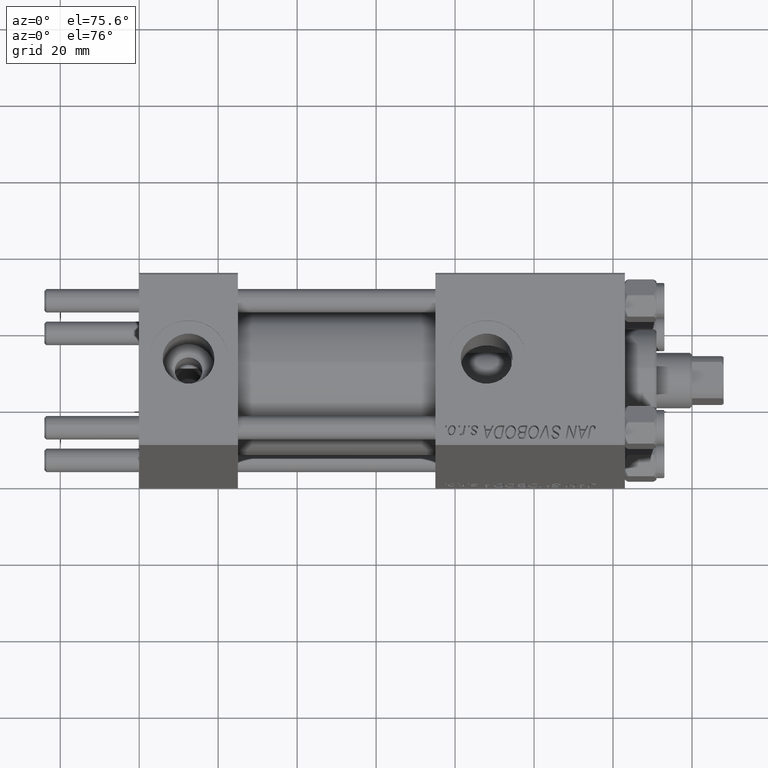
[diagram: clean part render]
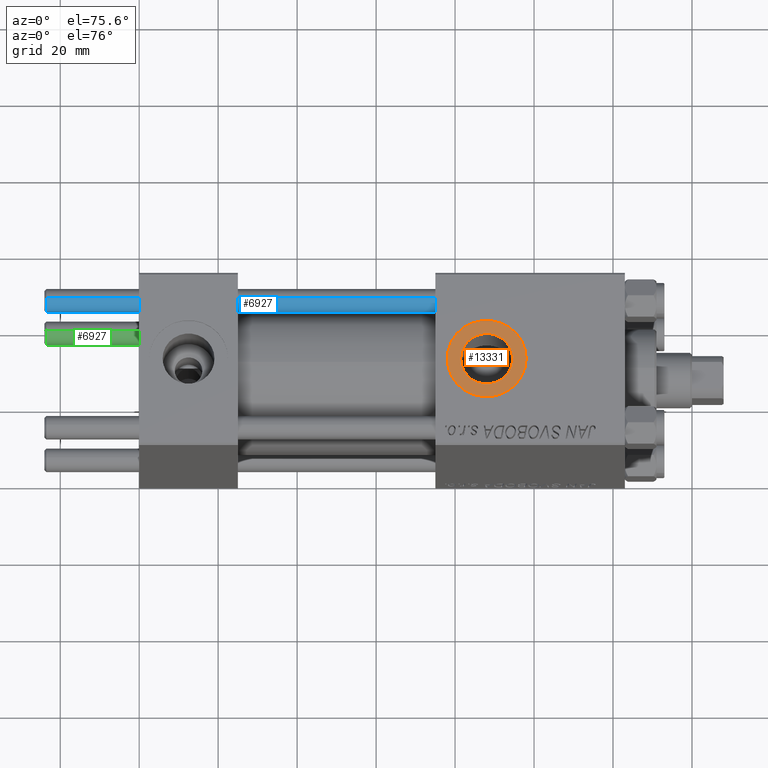
[diagram: same view with three faces highlighted in distinct colors, each labeled with its STEP entity id]
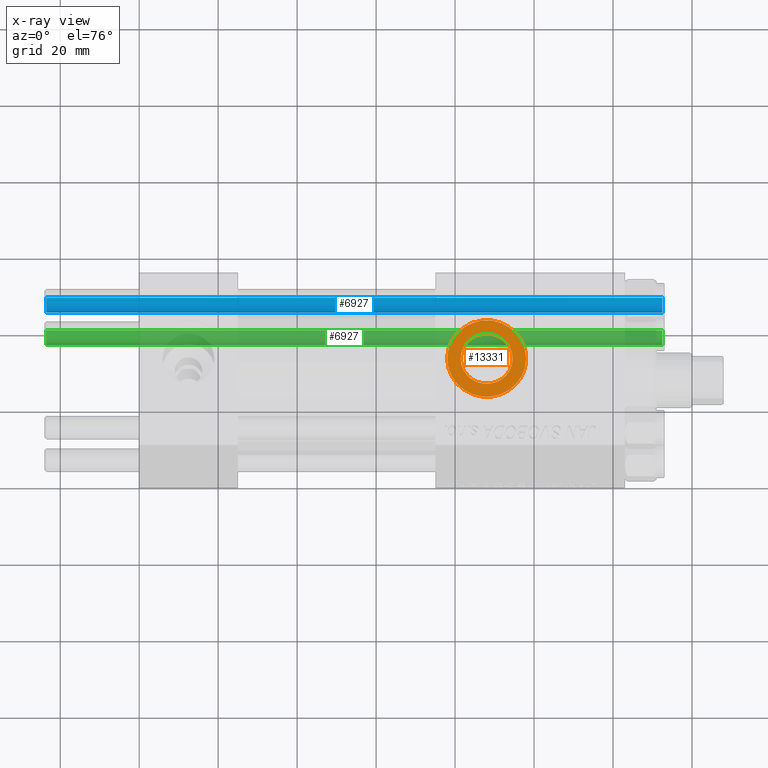
[diagram: x-ray of the same camera — body ghosted, the three highlighted faces saturated]
A machine part, auxiliary view with three faces highlighted in distinct colors.
The next image is the same camera in x-ray (body ghosted, the three faces saturated) — at least one of them is partly hidden behind the body in this view.
Their STEP definitions:

[orange] entity #13331 — the highlighted planar face has unit normal (0, 0, 1).
#865 = AXIS2_PLACEMENT_3D ( 'NONE', #28061, #15459, #11020 ) ;
#1027 = DIRECTION ( 'NONE',  ( 1.000000000000000000, 0.000000000000000000, 0.000000000000000000 ) ) ;
#2041 = CARTESIAN_POINT ( 'NONE',  ( 88.00000000000001421, -5.204170427930420494E-15, 22.29999999999999716 ) ) ;
#2174 = CIRCLE ( 'NONE', #23951, 6.580000000000002736 ) ;
#2425 = CIRCLE ( 'NONE', #13303, 10.00000000000000888 ) ;
#4503 = DIRECTION ( 'NONE',  ( -0.000000000000000000, -0.000000000000000000, -1.000000000000000000 ) ) ;
#4863 = EDGE_CURVE ( 'NONE', #30559, #48189, #2425, .T. ) ;
#8826 = EDGE_CURVE ( 'NONE', #34652, #12831, #2174, .T. ) ;
#9897 = DIRECTION ( 'NONE',  ( -0.000000000000000000, -0.000000000000000000, -1.000000000000000000 ) ) ;
#10062 = CIRCLE ( 'NONE', #45242, 6.580000000000002736 ) ;
#10315 = CARTESIAN_POINT ( 'NONE',  ( 78.00000000000000000, -3.979523628783065857E-15, 22.29999999999999716 ) ) ;
#11020 = DIRECTION ( 'NONE',  ( 1.000000000000000000, 0.000000000000000000, 0.000000000000000000 ) ) ;
#12133 = EDGE_LOOP ( 'NONE', ( #35740, #33630 ) ) ;
#12831 = VERTEX_POINT ( 'NONE', #43439 ) ;
#13078 = DIRECTION ( 'NONE',  ( 0.000000000000000000, 0.000000000000000000, 1.000000000000000000 ) ) ;
#13088 = AXIS2_PLACEMENT_3D ( 'NONE', #25133, #33771, #25907 ) ;
#13303 = AXIS2_PLACEMENT_3D ( 'NONE', #33287, #13078, #1027 ) ;
#13331 = ADVANCED_FACE ( 'NONE', ( #29577, #17770 ), #50046, .T. ) ;
#14932 = ORIENTED_EDGE ( 'NONE', *, *, #48766, .T. ) ;
#15459 = DIRECTION ( 'NONE',  ( 0.000000000000000000, 0.000000000000000000, 1.000000000000000000 ) ) ;
#16681 = CARTESIAN_POINT ( 'NONE',  ( 98.00000000000001421, -5.204170427930420494E-15, 22.29999999999999716 ) ) ;
#17770 = FACE_OUTER_BOUND ( 'NONE', #12133, .T. ) ;
#20591 = ORIENTED_EDGE ( 'NONE', *, *, #8826, .T. ) ;
#21273 = DIRECTION ( 'NONE',  ( 1.000000000000000000, 0.000000000000000000, 0.000000000000000000 ) ) ;
#23951 = AXIS2_PLACEMENT_3D ( 'NONE', #2041, #9897, #29587 ) ;
#25133 = CARTESIAN_POINT ( 'NONE',  ( 88.00000000000001421, -5.204170427930420494E-15, 22.29999999999999716 ) ) ;
#25907 = DIRECTION ( 'NONE',  ( 1.000000000000000000, 0.000000000000000000, -0.000000000000000000 ) ) ;
#28061 = CARTESIAN_POINT ( 'NONE',  ( 88.00000000000001421, -5.204170427930420494E-15, 22.29999999999999716 ) ) ;
#29577 = FACE_BOUND ( 'NONE', #38838, .T. ) ;
#29587 = DIRECTION ( 'NONE',  ( 1.000000000000000000, 0.000000000000000000, 0.000000000000000000 ) ) ;
#29716 = CARTESIAN_POINT ( 'NONE',  ( 94.58000000000001251, -4.398352834091461452E-15, 22.29999999999999716 ) ) ;
#30559 = VERTEX_POINT ( 'NONE', #10315 ) ;
#33287 = CARTESIAN_POINT ( 'NONE',  ( 88.00000000000001421, -5.204170427930420494E-15, 22.29999999999999716 ) ) ;
#33630 = ORIENTED_EDGE ( 'NONE', *, *, #4863, .T. ) ;
#33771 = DIRECTION ( 'NONE',  ( 0.000000000000000000, 0.000000000000000000, 1.000000000000000000 ) ) ;
#34652 = VERTEX_POINT ( 'NONE', #29716 ) ;
#35740 = ORIENTED_EDGE ( 'NONE', *, *, #48932, .T. ) ;
#36775 = CARTESIAN_POINT ( 'NONE',  ( 88.00000000000001421, -5.204170427930420494E-15, 22.29999999999999716 ) ) ;
#38838 = EDGE_LOOP ( 'NONE', ( #14932, #20591 ) ) ;
#42734 = CIRCLE ( 'NONE', #865, 10.00000000000000888 ) ;
#43439 = CARTESIAN_POINT ( 'NONE',  ( 81.42000000000000171, -5.204170427930420494E-15, 22.29999999999999716 ) ) ;
#45242 = AXIS2_PLACEMENT_3D ( 'NONE', #36775, #4503, #21273 ) ;
#48189 = VERTEX_POINT ( 'NONE', #16681 ) ;
#48766 = EDGE_CURVE ( 'NONE', #12831, #34652, #10062, .T. ) ;
#48932 = EDGE_CURVE ( 'NONE', #48189, #30559, #42734, .T. ) ;
#50046 = PLANE ( 'NONE',  #13088 ) ;

[blue] entity #6927 — the highlighted cylindrical surface (edge-blend (fillet) strip) has radius 3 mm, axis along (-1, -0, -0).
#1481 = ORIENTED_EDGE ( 'NONE', *, *, #18535, .F. ) ;
#2549 = EDGE_CURVE ( 'NONE', #15577, #41036, #9754, .T. ) ;
#6927 = ADVANCED_FACE ( 'NONE', ( #8067 ), #28535, .T. ) ;
#7304 = AXIS2_PLACEMENT_3D ( 'NONE', #10666, #18790, #14860 ) ;
#7784 = CARTESIAN_POINT ( 'NONE',  ( 3.000000000000000444, 3.673940397442060361E-16, 0.4999999999999726885 ) ) ;
#8067 = FACE_OUTER_BOUND ( 'NONE', #11093, .T. ) ;
#8466 = LINE ( 'NONE', #20792, #22467 ) ;
#9754 = CIRCLE ( 'NONE', #13134, 3.000000000000000444 ) ;
#10666 = CARTESIAN_POINT ( 'NONE',  ( 0.000000000000000000, 0.000000000000000000, 0.4999999999999726885 ) ) ;
#11093 = EDGE_LOOP ( 'NONE', ( #1481, #21923, #18206, #13002 ) ) ;
#13002 = ORIENTED_EDGE ( 'NONE', *, *, #16237, .T. ) ;
#13134 = AXIS2_PLACEMENT_3D ( 'NONE', #17081, #44912, #49382 ) ;
#14860 = DIRECTION ( 'NONE',  ( 1.000000000000000000, 0.000000000000000000, 0.000000000000000000 ) ) ;
#15577 = VERTEX_POINT ( 'NONE', #16076 ) ;
#16076 = CARTESIAN_POINT ( 'NONE',  ( 3.000000000000000444, 3.673940397442060361E-16, 156.5000000000000284 ) ) ;
#16237 = EDGE_CURVE ( 'NONE', #27938, #44272, #24092, .T. ) ;
#16454 = CARTESIAN_POINT ( 'NONE',  ( 0.000000000000000000, 0.000000000000000000, 157.0000000000000000 ) ) ;
#17081 = CARTESIAN_POINT ( 'NONE',  ( 0.000000000000000000, 0.000000000000000000, 156.5000000000000284 ) ) ;
#17110 = LINE ( 'NONE', #17382, #21092 ) ;
#17382 = CARTESIAN_POINT ( 'NONE',  ( -3.000000000000000444, 0.000000000000000000, 157.0000000000000000 ) ) ;
#18206 = ORIENTED_EDGE ( 'NONE', *, *, #31693, .T. ) ;
#18535 = EDGE_CURVE ( 'NONE', #15577, #44272, #8466, .T. ) ;
#18790 = DIRECTION ( 'NONE',  ( -0.000000000000000000, -0.000000000000000000, 1.000000000000000000 ) ) ;
#20792 = CARTESIAN_POINT ( 'NONE',  ( 3.000000000000000444, 3.673940397442060361E-16, 157.0000000000000000 ) ) ;
#21058 = DIRECTION ( 'NONE',  ( -0.000000000000000000, -0.000000000000000000, -1.000000000000000000 ) ) ;
#21092 = VECTOR ( 'NONE', #21058, 1000.000000000000000 ) ;
#21168 = DIRECTION ( 'NONE',  ( -0.000000000000000000, -0.000000000000000000, -1.000000000000000000 ) ) ;
#21923 = ORIENTED_EDGE ( 'NONE', *, *, #2549, .T. ) ;
#22467 = VECTOR ( 'NONE', #32610, 1000.000000000000000 ) ;
#24092 = CIRCLE ( 'NONE', #7304, 3.000000000000000444 ) ;
#27938 = VERTEX_POINT ( 'NONE', #33380 ) ;
#28535 = CYLINDRICAL_SURFACE ( 'NONE', #31399, 3.000000000000000444 ) ;
#28787 = DIRECTION ( 'NONE',  ( -1.000000000000000000, 0.000000000000000000, 0.000000000000000000 ) ) ;
#31024 = CARTESIAN_POINT ( 'NONE',  ( -3.000000000000000444, 0.000000000000000000, 156.5000000000000284 ) ) ;
#31399 = AXIS2_PLACEMENT_3D ( 'NONE', #16454, #21168, #28787 ) ;
#31693 = EDGE_CURVE ( 'NONE', #41036, #27938, #17110, .T. ) ;
#32610 = DIRECTION ( 'NONE',  ( -0.000000000000000000, -0.000000000000000000, -1.000000000000000000 ) ) ;
#33380 = CARTESIAN_POINT ( 'NONE',  ( -3.000000000000000444, 0.000000000000000000, 0.4999999999999726885 ) ) ;
#41036 = VERTEX_POINT ( 'NONE', #31024 ) ;
#44272 = VERTEX_POINT ( 'NONE', #7784 ) ;
#44912 = DIRECTION ( 'NONE',  ( 0.000000000000000000, 0.000000000000000000, -1.000000000000000000 ) ) ;
#49382 = DIRECTION ( 'NONE',  ( 1.000000000000000000, 0.000000000000000000, 0.000000000000000000 ) ) ;

[green] entity #6927 — the highlighted cylindrical surface (edge-blend (fillet) strip) has radius 3 mm, axis along (1, 0, -0).
#1481 = ORIENTED_EDGE ( 'NONE', *, *, #18535, .F. ) ;
#2549 = EDGE_CURVE ( 'NONE', #15577, #41036, #9754, .T. ) ;
#6927 = ADVANCED_FACE ( 'NONE', ( #8067 ), #28535, .T. ) ;
#7304 = AXIS2_PLACEMENT_3D ( 'NONE', #10666, #18790, #14860 ) ;
#7784 = CARTESIAN_POINT ( 'NONE',  ( 3.000000000000000444, 3.673940397442060361E-16, 0.4999999999999726885 ) ) ;
#8067 = FACE_OUTER_BOUND ( 'NONE', #11093, .T. ) ;
#8466 = LINE ( 'NONE', #20792, #22467 ) ;
#9754 = CIRCLE ( 'NONE', #13134, 3.000000000000000444 ) ;
#10666 = CARTESIAN_POINT ( 'NONE',  ( 0.000000000000000000, 0.000000000000000000, 0.4999999999999726885 ) ) ;
#11093 = EDGE_LOOP ( 'NONE', ( #1481, #21923, #18206, #13002 ) ) ;
#13002 = ORIENTED_EDGE ( 'NONE', *, *, #16237, .T. ) ;
#13134 = AXIS2_PLACEMENT_3D ( 'NONE', #17081, #44912, #49382 ) ;
#14860 = DIRECTION ( 'NONE',  ( 1.000000000000000000, 0.000000000000000000, 0.000000000000000000 ) ) ;
#15577 = VERTEX_POINT ( 'NONE', #16076 ) ;
#16076 = CARTESIAN_POINT ( 'NONE',  ( 3.000000000000000444, 3.673940397442060361E-16, 156.5000000000000284 ) ) ;
#16237 = EDGE_CURVE ( 'NONE', #27938, #44272, #24092, .T. ) ;
#16454 = CARTESIAN_POINT ( 'NONE',  ( 0.000000000000000000, 0.000000000000000000, 157.0000000000000000 ) ) ;
#17081 = CARTESIAN_POINT ( 'NONE',  ( 0.000000000000000000, 0.000000000000000000, 156.5000000000000284 ) ) ;
#17110 = LINE ( 'NONE', #17382, #21092 ) ;
#17382 = CARTESIAN_POINT ( 'NONE',  ( -3.000000000000000444, 0.000000000000000000, 157.0000000000000000 ) ) ;
#18206 = ORIENTED_EDGE ( 'NONE', *, *, #31693, .T. ) ;
#18535 = EDGE_CURVE ( 'NONE', #15577, #44272, #8466, .T. ) ;
#18790 = DIRECTION ( 'NONE',  ( -0.000000000000000000, -0.000000000000000000, 1.000000000000000000 ) ) ;
#20792 = CARTESIAN_POINT ( 'NONE',  ( 3.000000000000000444, 3.673940397442060361E-16, 157.0000000000000000 ) ) ;
#21058 = DIRECTION ( 'NONE',  ( -0.000000000000000000, -0.000000000000000000, -1.000000000000000000 ) ) ;
#21092 = VECTOR ( 'NONE', #21058, 1000.000000000000000 ) ;
#21168 = DIRECTION ( 'NONE',  ( -0.000000000000000000, -0.000000000000000000, -1.000000000000000000 ) ) ;
#21923 = ORIENTED_EDGE ( 'NONE', *, *, #2549, .T. ) ;
#22467 = VECTOR ( 'NONE', #32610, 1000.000000000000000 ) ;
#24092 = CIRCLE ( 'NONE', #7304, 3.000000000000000444 ) ;
#27938 = VERTEX_POINT ( 'NONE', #33380 ) ;
#28535 = CYLINDRICAL_SURFACE ( 'NONE', #31399, 3.000000000000000444 ) ;
#28787 = DIRECTION ( 'NONE',  ( -1.000000000000000000, 0.000000000000000000, 0.000000000000000000 ) ) ;
#31024 = CARTESIAN_POINT ( 'NONE',  ( -3.000000000000000444, 0.000000000000000000, 156.5000000000000284 ) ) ;
#31399 = AXIS2_PLACEMENT_3D ( 'NONE', #16454, #21168, #28787 ) ;
#31693 = EDGE_CURVE ( 'NONE', #41036, #27938, #17110, .T. ) ;
#32610 = DIRECTION ( 'NONE',  ( -0.000000000000000000, -0.000000000000000000, -1.000000000000000000 ) ) ;
#33380 = CARTESIAN_POINT ( 'NONE',  ( -3.000000000000000444, 0.000000000000000000, 0.4999999999999726885 ) ) ;
#41036 = VERTEX_POINT ( 'NONE', #31024 ) ;
#44272 = VERTEX_POINT ( 'NONE', #7784 ) ;
#44912 = DIRECTION ( 'NONE',  ( 0.000000000000000000, 0.000000000000000000, -1.000000000000000000 ) ) ;
#49382 = DIRECTION ( 'NONE',  ( 1.000000000000000000, 0.000000000000000000, 0.000000000000000000 ) ) ;